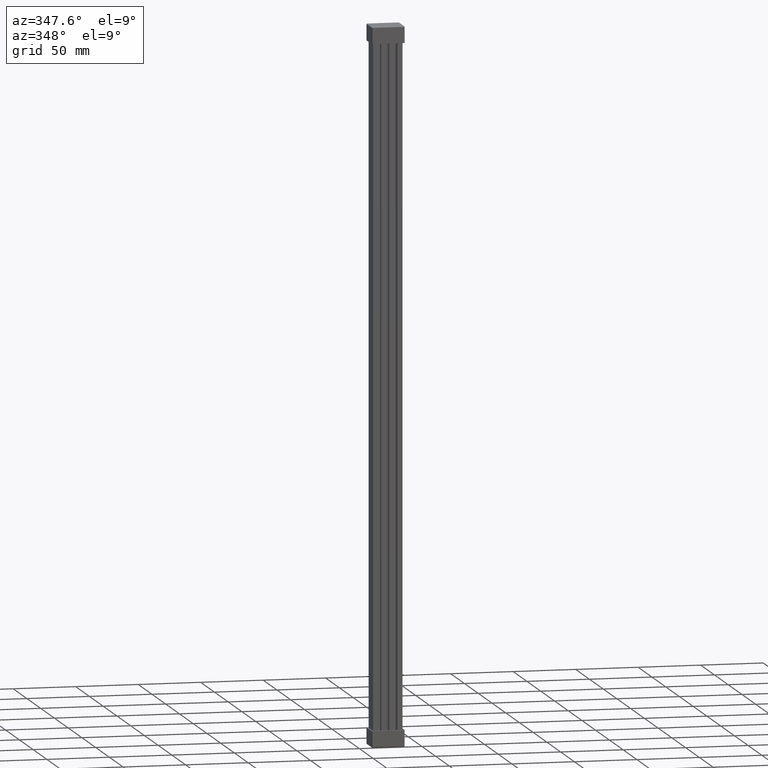
[diagram: clean part render]
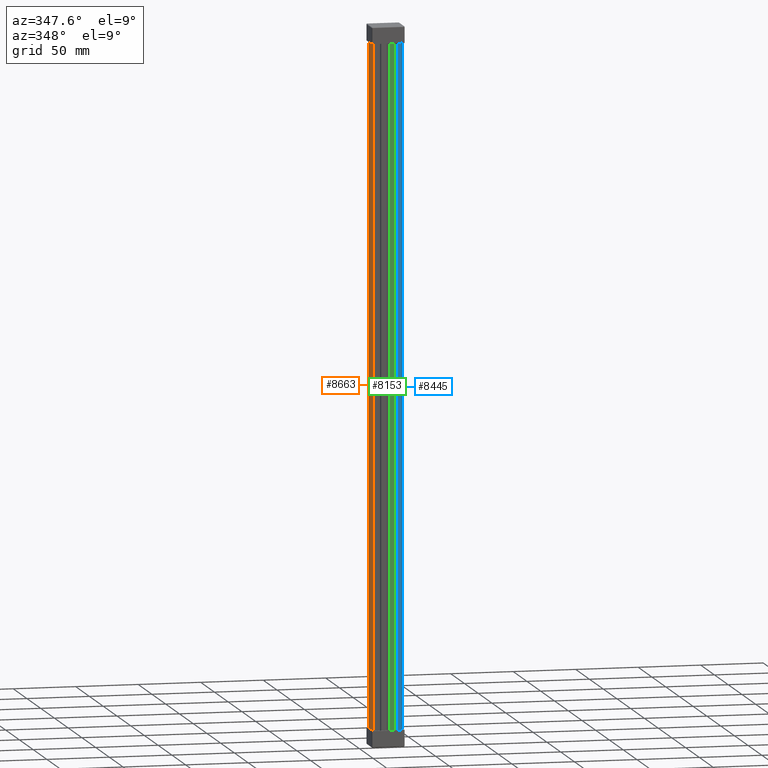
[diagram: same view with three faces highlighted in distinct colors, each labeled with its STEP entity id]
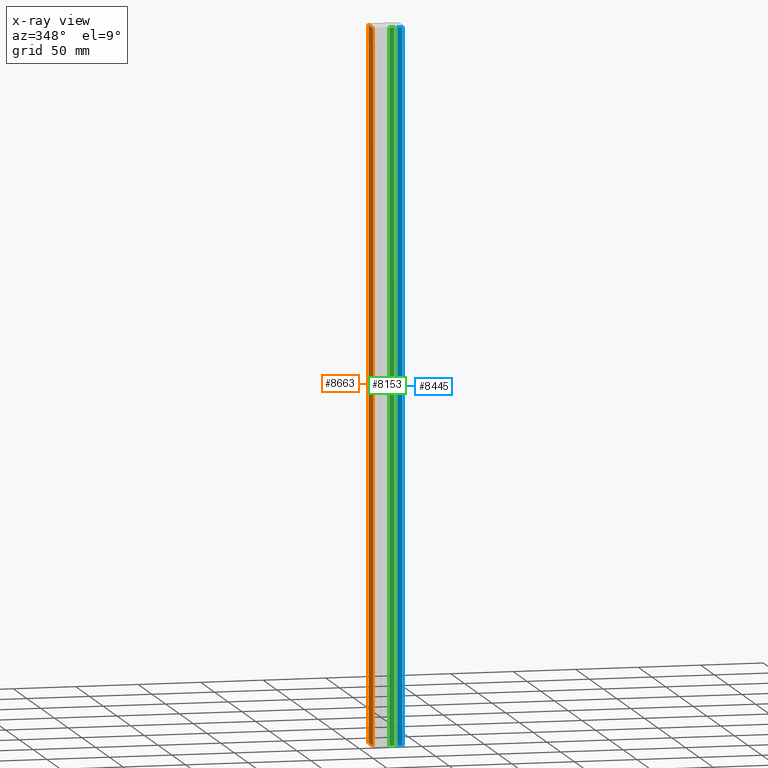
[diagram: x-ray of the same camera — body ghosted, the three highlighted faces saturated]
A machine part, auxiliary view with three faces highlighted in distinct colors.
The next image is the same camera in x-ray (body ghosted, the three faces saturated) — at least one of them is partly hidden behind the body in this view.
Their STEP definitions:

[orange] entity #8663 — the highlighted planar face has unit normal (1, -0, 0).
#1408 = FACE_OUTER_BOUND ( 'NONE', #6036, .T. ) ;
#1413 = PLANE ( 'NONE',  #4718 ) ;
#1414 = DIRECTION ( 'NONE',  ( 1.000000000000000000, -0.0000000000000000000, 0.0000000000000000000 ) ) ;
#1415 = DIRECTION ( 'NONE',  ( 0.0000000000000000000, 0.0000000000000000000, -1.000000000000000000 ) ) ;
#1419 = CARTESIAN_POINT ( 'NONE',  ( 0.0000000000000000000, -14.22575591090892800, 304.0000000000000000 ) ) ;
#3387 = ORIENTED_EDGE ( 'NONE', *, *, #9902, .F. ) ;
#3389 = ORIENTED_EDGE ( 'NONE', *, *, #9721, .F. ) ;
#3444 = ORIENTED_EDGE ( 'NONE', *, *, #9929, .F. ) ;
#3476 = ORIENTED_EDGE ( 'NONE', *, *, #9794, .F. ) ;
#4718 = AXIS2_PLACEMENT_3D ( 'NONE', #1419, #1414, #1415 ) ;
#6036 = EDGE_LOOP ( 'NONE', ( #3476, #3444, #3387, #3389 ) ) ;
#8663 = ADVANCED_FACE ( 'NONE', ( #1408 ), #1413, .F. ) ;
#9721 = EDGE_CURVE ( 'NONE', #12698, #12697, #51638, .T. ) ;
#9794 = EDGE_CURVE ( 'NONE', #12679, #12698, #52205, .T. ) ;
#9902 = EDGE_CURVE ( 'NONE', #12697, #53549, #56663, .T. ) ;
#9929 = EDGE_CURVE ( 'NONE', #53549, #12679, #56831, .T. ) ;
#12679 = VERTEX_POINT ( 'NONE', #38966 ) ;
#12697 = VERTEX_POINT ( 'NONE', #38954 ) ;
#12698 = VERTEX_POINT ( 'NONE', #38969 ) ;
#23524 = CARTESIAN_POINT ( 'NONE',  ( 0.0000000000000000000, 16.50000000000001400, -263.9974937185326700 ) ) ;
#32546 = VECTOR ( 'NONE', #51584, 1000.000000000000000 ) ;
#32787 = VECTOR ( 'NONE', #52194, 1000.000000000000000 ) ;
#32944 = VECTOR ( 'NONE', #56706, 1000.000000000000000 ) ;
#32995 = VECTOR ( 'NONE', #56877, 1000.000000000000000 ) ;
#38954 = CARTESIAN_POINT ( 'NONE',  ( 0.0000000000000000000, 0.0000000000000000000, -263.9974937185326700 ) ) ;
#38966 = CARTESIAN_POINT ( 'NONE',  ( 0.0000000000000000000, 16.50000000000001400, 303.9974937185326700 ) ) ;
#38969 = CARTESIAN_POINT ( 'NONE',  ( 0.0000000000000000000, 0.0000000000000000000, 303.9974937185326700 ) ) ;
#51584 = DIRECTION ( 'NONE',  ( 0.0000000000000000000, 0.0000000000000000000, -1.000000000000000000 ) ) ;
#51596 = CARTESIAN_POINT ( 'NONE',  ( 0.0000000000000000000, 0.0000000000000000000, 304.0000000000000000 ) ) ;
#51638 = LINE ( 'NONE', #51596, #32546 ) ;
#52161 = CARTESIAN_POINT ( 'NONE',  ( 0.0000000000000000000, -14.22575591090892800, 303.9974937185326700 ) ) ;
#52194 = DIRECTION ( 'NONE',  ( -0.0000000000000000000, -1.000000000000000000, -0.0000000000000000000 ) ) ;
#52205 = LINE ( 'NONE', #52161, #32787 ) ;
#53549 = VERTEX_POINT ( 'NONE', #23524 ) ;
#56663 = LINE ( 'NONE', #56670, #32944 ) ;
#56670 = CARTESIAN_POINT ( 'NONE',  ( 0.0000000000000000000, -14.22575591090892800, -263.9974937185326100 ) ) ;
#56706 = DIRECTION ( 'NONE',  ( 0.0000000000000000000, 1.000000000000000000, 0.0000000000000000000 ) ) ;
#56831 = LINE ( 'NONE', #56833, #32995 ) ;
#56833 = CARTESIAN_POINT ( 'NONE',  ( 0.0000000000000000000, 16.50000000000001400, 304.0000000000000000 ) ) ;
#56877 = DIRECTION ( 'NONE',  ( 0.0000000000000000000, -0.0000000000000000000, 1.000000000000000000 ) ) ;

[blue] entity #8445 — the highlighted planar face has unit normal (0, -1, 0).
#3118 = CARTESIAN_POINT ( 'NONE',  ( 11.74999999999998400, 0.0000000000000000000, 304.0000000000000000 ) ) ;
#3132 = PLANE ( 'NONE',  #59800 ) ;
#3160 = DIRECTION ( 'NONE',  ( 0.0000000000000000000, -0.0000000000000000000, -1.000000000000000000 ) ) ;
#3185 = FACE_OUTER_BOUND ( 'NONE', #6126, .T. ) ;
#3191 = DIRECTION ( 'NONE',  ( 0.0000000000000000000, -1.000000000000000000, 0.0000000000000000000 ) ) ;
#4569 = VECTOR ( 'NONE', #46014, 1000.000000000000000 ) ;
#4570 = VECTOR ( 'NONE', #50814, 1000.000000000000000 ) ;
#4614 = VECTOR ( 'NONE', #50500, 1000.000000000000000 ) ;
#4764 = VECTOR ( 'NONE', #51125, 1000.000000000000000 ) ;
#6126 = EDGE_LOOP ( 'NONE', ( #36506, #36601, #36524, #36509, #36610, #36582 ) ) ;
#8445 = ADVANCED_FACE ( 'NONE', ( #3185 ), #3132, .T. ) ;
#9560 = EDGE_CURVE ( 'NONE', #12457, #12382, #47102, .T. ) ;
#9582 = EDGE_CURVE ( 'NONE', #12440, #12534, #50528, .T. ) ;
#9601 = EDGE_CURVE ( 'NONE', #12432, #12497, #50685, .T. ) ;
#9607 = EDGE_CURVE ( 'NONE', #12534, #12457, #48997, .T. ) ;
#9624 = EDGE_CURVE ( 'NONE', #12497, #12440, #49077, .T. ) ;
#9632 = EDGE_CURVE ( 'NONE', #12382, #12432, #51127, .T. ) ;
#12382 = VERTEX_POINT ( 'NONE', #42236 ) ;
#12432 = VERTEX_POINT ( 'NONE', #41471 ) ;
#12440 = VERTEX_POINT ( 'NONE', #41830 ) ;
#12457 = VERTEX_POINT ( 'NONE', #38750 ) ;
#12497 = VERTEX_POINT ( 'NONE', #38752 ) ;
#12534 = VERTEX_POINT ( 'NONE', #38815 ) ;
#36506 = ORIENTED_EDGE ( 'NONE', *, *, #9632, .T. ) ;
#36509 = ORIENTED_EDGE ( 'NONE', *, *, #9582, .T. ) ;
#36524 = ORIENTED_EDGE ( 'NONE', *, *, #9624, .T. ) ;
#36582 = ORIENTED_EDGE ( 'NONE', *, *, #9560, .T. ) ;
#36601 = ORIENTED_EDGE ( 'NONE', *, *, #9601, .T. ) ;
#36610 = ORIENTED_EDGE ( 'NONE', *, *, #9607, .T. ) ;
#38750 = CARTESIAN_POINT ( 'NONE',  ( 23.45000000020484500, -6.938893903907228400E-016, 303.9999999999955100 ) ) ;
#38752 = CARTESIAN_POINT ( 'NONE',  ( 23.45000000020439800, 0.0000000000000000000, -263.9999999999963100 ) ) ;
#38815 = CARTESIAN_POINT ( 'NONE',  ( 23.49999999999996400, 0.0000000000000000000, 303.9974937185664300 ) ) ;
#41471 = CARTESIAN_POINT ( 'NONE',  ( 19.49999999999996100, -1.410344280671014000E-017, -263.9999999999979500 ) ) ;
#41830 = CARTESIAN_POINT ( 'NONE',  ( 23.49999999999996400, 0.0000000000000000000, -263.9974937185663700 ) ) ;
#42236 = CARTESIAN_POINT ( 'NONE',  ( 19.49999999999996100, 0.0000000000000000000, 304.0000000000000000 ) ) ;
#46001 = CARTESIAN_POINT ( 'NONE',  ( 11.74999999999998400, 0.0000000000000000000, 304.0000000000000000 ) ) ;
#46014 = DIRECTION ( 'NONE',  ( -1.000000000000000000, -0.0000000000000000000, -0.0000000000000000000 ) ) ;
#47102 = LINE ( 'NONE', #46001, #4569 ) ;
#48997 = B_SPLINE_CURVE_WITH_KNOTS ( 'NONE', 3,
 ( #50794, #50806, #50734, #50707 ),
 .UNSPECIFIED., .F., .F.,
 ( 4, 4 ),
 ( 0.0000000000000000000, 1.000000000000000000 ),
 .UNSPECIFIED. ) ;
#49077 = B_SPLINE_CURVE_WITH_KNOTS ( 'NONE', 3,
 ( #50951, #51002, #50972, #50942 ),
 .UNSPECIFIED., .F., .F.,
 ( 4, 4 ),
 ( 0.0000000000000000000, 1.000000000000000000 ),
 .UNSPECIFIED. ) ;
#50500 = DIRECTION ( 'NONE',  ( 0.0000000000000000000, 0.0000000000000000000, 1.000000000000000000 ) ) ;
#50528 = LINE ( 'NONE', #50556, #4614 ) ;
#50556 = CARTESIAN_POINT ( 'NONE',  ( 23.49999999999996400, 0.0000000000000000000, 304.0000000000000000 ) ) ;
#50685 = LINE ( 'NONE', #50736, #4570 ) ;
#50707 = CARTESIAN_POINT ( 'NONE',  ( 23.45000000020484500, -6.938893903907228400E-016, 303.9999999999955100 ) ) ;
#50734 = CARTESIAN_POINT ( 'NONE',  ( 23.46666666680355800, 0.0000000000000000000, 303.9991645728554200 ) ) ;
#50736 = CARTESIAN_POINT ( 'NONE',  ( 11.74999999999998400, 0.0000000000000000000, -264.0000000000000600 ) ) ;
#50794 = CARTESIAN_POINT ( 'NONE',  ( 23.49999999999996400, 0.0000000000000000000, 303.9974937185664300 ) ) ;
#50806 = CARTESIAN_POINT ( 'NONE',  ( 23.48333333340176300, 0.0000000000000000000, 303.9983291457109500 ) ) ;
#50814 = DIRECTION ( 'NONE',  ( 1.000000000000000000, 0.0000000000000000000, 0.0000000000000000000 ) ) ;
#50942 = CARTESIAN_POINT ( 'NONE',  ( 23.49999999999996400, 0.0000000000000000000, -263.9974937185663700 ) ) ;
#50951 = CARTESIAN_POINT ( 'NONE',  ( 23.45000000020439800, 0.0000000000000000000, -263.9999999999963100 ) ) ;
#50972 = CARTESIAN_POINT ( 'NONE',  ( 23.48333333340135100, 0.0000000000000000000, -263.9983291457109000 ) ) ;
#51002 = CARTESIAN_POINT ( 'NONE',  ( 23.46666666680273700, 0.0000000000000000000, -263.9991645728554800 ) ) ;
#51116 = CARTESIAN_POINT ( 'NONE',  ( 19.49999999999996100, 0.0000000000000000000, 304.0000000000000000 ) ) ;
#51125 = DIRECTION ( 'NONE',  ( 0.0000000000000000000, -0.0000000000000000000, -1.000000000000000000 ) ) ;
#51127 = LINE ( 'NONE', #51116, #4764 ) ;
#59800 = AXIS2_PLACEMENT_3D ( 'NONE', #3118, #3191, #3160 ) ;

[green] entity #8153 — the highlighted planar face has unit normal (0, 1, 0).
#1605 = PLANE ( 'NONE',  #59459 ) ;
#1606 = CARTESIAN_POINT ( 'NONE',  ( 11.74999999999998400, 0.0000000000000000000, 304.0000000000000000 ) ) ;
#1609 = DIRECTION ( 'NONE',  ( 0.0000000000000000000, 1.000000000000000000, 0.0000000000000000000 ) ) ;
#1612 = DIRECTION ( 'NONE',  ( 0.0000000000000000000, -0.0000000000000000000, 1.000000000000000000 ) ) ;
#1622 = FACE_OUTER_BOUND ( 'NONE', #5995, .T. ) ;
#2596 = ORIENTED_EDGE ( 'NONE', *, *, #9486, .T. ) ;
#2784 = ORIENTED_EDGE ( 'NONE', *, *, #9477, .F. ) ;
#4427 = VECTOR ( 'NONE', #46882, 1000.000000000000000 ) ;
#4454 = VECTOR ( 'NONE', #46859, 1000.000000000000000 ) ;
#4462 = VECTOR ( 'NONE', #46889, 1000.000000000000000 ) ;
#4476 = VECTOR ( 'NONE', #46798, 1000.000000000000000 ) ;
#5995 = EDGE_LOOP ( 'NONE', ( #2784, #37296, #37299, #2596 ) ) ;
#8153 = ADVANCED_FACE ( 'NONE', ( #1622 ), #1605, .F. ) ;
#9455 = EDGE_CURVE ( 'NONE', #12239, #12282, #46744, .T. ) ;
#9477 = EDGE_CURVE ( 'NONE', #12282, #12307, #46865, .T. ) ;
#9479 = EDGE_CURVE ( 'NONE', #12226, #12239, #46871, .T. ) ;
#9486 = EDGE_CURVE ( 'NONE', #12226, #12307, #46896, .T. ) ;
#12226 = VERTEX_POINT ( 'NONE', #42156 ) ;
#12239 = VERTEX_POINT ( 'NONE', #42165 ) ;
#12282 = VERTEX_POINT ( 'NONE', #42174 ) ;
#12307 = VERTEX_POINT ( 'NONE', #42192 ) ;
#37296 = ORIENTED_EDGE ( 'NONE', *, *, #9455, .F. ) ;
#37299 = ORIENTED_EDGE ( 'NONE', *, *, #9479, .F. ) ;
#42156 = CARTESIAN_POINT ( 'NONE',  ( 17.00000000000001400, 0.0000000000000000000, -263.9999999999973300 ) ) ;
#42165 = CARTESIAN_POINT ( 'NONE',  ( 13.00000000000001100, 0.0000000000000000000, -263.9999999999979500 ) ) ;
#42174 = CARTESIAN_POINT ( 'NONE',  ( 13.00000000000001100, 0.0000000000000000000, 303.9999999999959100 ) ) ;
#42192 = CARTESIAN_POINT ( 'NONE',  ( 17.00000000000001400, 0.0000000000000000000, 303.9999999999946000 ) ) ;
#46744 = LINE ( 'NONE', #46815, #4476 ) ;
#46798 = DIRECTION ( 'NONE',  ( 0.0000000000000000000, -0.0000000000000000000, 1.000000000000000000 ) ) ;
#46815 = CARTESIAN_POINT ( 'NONE',  ( 13.00000000000001100, 0.0000000000000000000, 304.0000000000000000 ) ) ;
#46847 = CARTESIAN_POINT ( 'NONE',  ( 11.75000000020468400, 0.0000000000000000000, 303.9999999999962500 ) ) ;
#46854 = CARTESIAN_POINT ( 'NONE',  ( 11.75000000020468400, 0.0000000000000000000, -263.9999999999962500 ) ) ;
#46859 = DIRECTION ( 'NONE',  ( -1.000000000000000000, -0.0000000000000000000, -3.163580508669383600E-013 ) ) ;
#46865 = LINE ( 'NONE', #46847, #4427 ) ;
#46871 = LINE ( 'NONE', #46854, #4454 ) ;
#46882 = DIRECTION ( 'NONE',  ( 1.000000000000000000, -0.0000000000000000000, -3.163580508669383600E-013 ) ) ;
#46889 = DIRECTION ( 'NONE',  ( 0.0000000000000000000, 0.0000000000000000000, 1.000000000000000000 ) ) ;
#46896 = LINE ( 'NONE', #46914, #4462 ) ;
#46914 = CARTESIAN_POINT ( 'NONE',  ( 17.00000000000001400, 0.0000000000000000000, 304.0000000000000000 ) ) ;
#59459 = AXIS2_PLACEMENT_3D ( 'NONE', #1606, #1609, #1612 ) ;